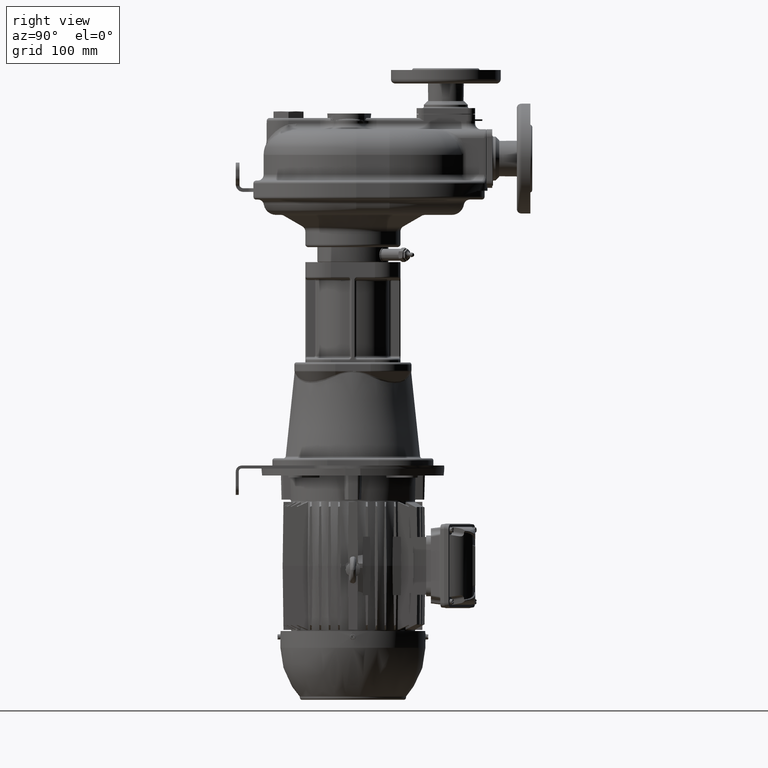
[diagram: clean part render]
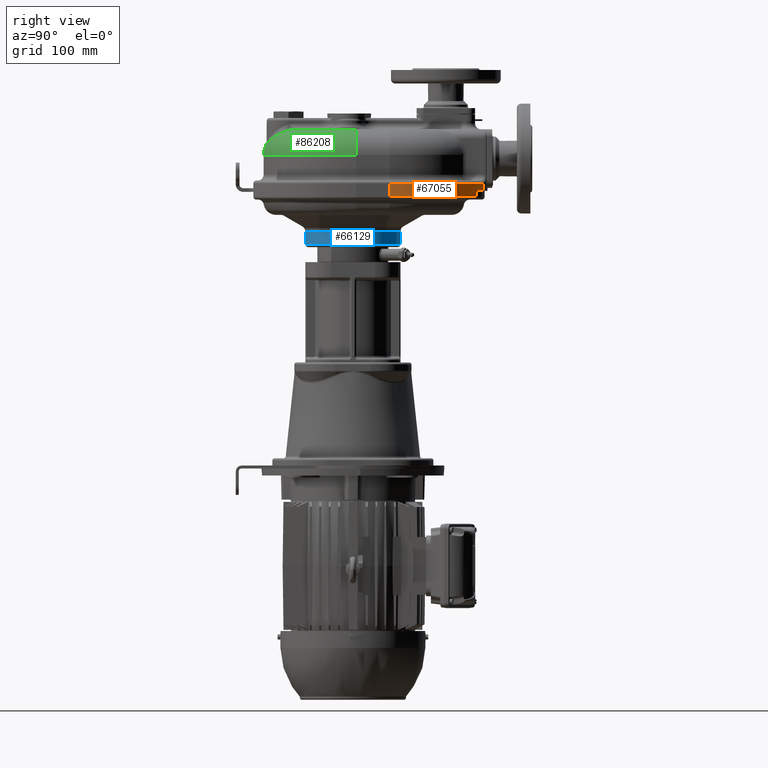
[diagram: same view with three faces highlighted in distinct colors, each labeled with its STEP entity id]
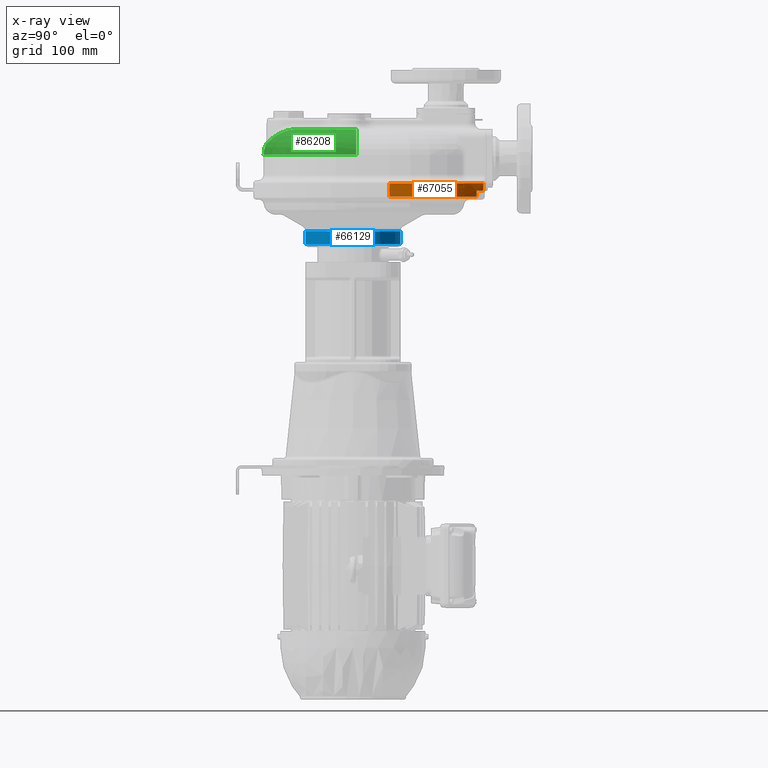
[diagram: x-ray of the same camera — body ghosted, the three highlighted faces saturated]
A machine part, right view with three faces highlighted in distinct colors.
The next image is the same camera in x-ray (body ghosted, the three faces saturated) — at least one of them is partly hidden behind the body in this view.
Their STEP definitions:

[orange] entity #67055 — the highlighted cylindrical surface (partial cylindrical patch) has radius 150 mm, axis along (0, 0, -1).
#10025=DIRECTION('',(0.E0,0.E0,-1.E0));
#10026=VECTOR('',#10025,1.8E1);
#10027=CARTESIAN_POINT('',(1.59E2,5.E1,5.E0));
#10028=LINE('',#10027,#10026);
#10037=DIRECTION('',(0.E0,0.E0,-1.E0));
#10038=VECTOR('',#10037,6.E0);
#10039=CARTESIAN_POINT('',(1.002240074459E2,1.690721649485E2,-7.E0));
#10040=LINE('',#10039,#10038);
#10041=CARTESIAN_POINT('',(9.E0,5.E1,-1.3E1));
#10042=DIRECTION('',(0.E0,0.E0,-1.E0));
#10043=DIRECTION('',(6.081600496393E-1,7.938144329897E-1,0.E0));
#10044=AXIS2_PLACEMENT_3D('',#10041,#10042,#10043);
#10046=CARTESIAN_POINT('',(9.E0,5.E1,5.E0));
#10047=DIRECTION('',(0.E0,0.E0,-1.E0));
#10048=DIRECTION('',(5.273972602740E-1,8.496188144430E-1,0.E0));
#10049=AXIS2_PLACEMENT_3D('',#10046,#10047,#10048);
#10051=CARTESIAN_POINT('',(8.690649194774E1,1.781818181818E2,5.057273132531E0));
#10052=CARTESIAN_POINT('',(8.703916836119E1,1.781011799598E2,5.044610795514E0));
#10053=CARTESIAN_POINT('',(8.730519693295E1,1.779389290195E2,5.023447268813E0));
#10054=CARTESIAN_POINT('',(8.770658737873E1,1.776923940260E2,5.004281846902E0));
#10055=CARTESIAN_POINT('',(8.797507183824E1,1.775263231474E2,5.000000005404E0));
#10056=CARTESIAN_POINT('',(8.810958904110E1,1.774428221664E2,5.E0));
#10058=DIRECTION('',(0.E0,0.E0,1.E0));
#10059=VECTOR('',#10058,1.005727313253E1);
#10060=CARTESIAN_POINT('',(8.690649194774E1,1.781818181818E2,-5.E0));
#10061=LINE('',#10060,#10059);
#10062=DIRECTION('',(0.E0,0.E0,-1.E0));
#10063=VECTOR('',#10062,5.E-1);
#10064=CARTESIAN_POINT('',(9.9E1,1.7E2,-6.5E0));
#10065=LINE('',#10064,#10063);
#10071=CARTESIAN_POINT('',(9.E0,5.E1,-7.E0));
#10072=DIRECTION('',(0.E0,0.E0,-1.E0));
#10073=DIRECTION('',(6.E-1,8.E-1,0.E0));
#10074=AXIS2_PLACEMENT_3D('',#10071,#10072,#10073);
#10396=CARTESIAN_POINT('',(9.E0,5.E1,-5.E0));
#10397=DIRECTION('',(0.E0,0.E0,-1.E0));
#10398=DIRECTION('',(5.193766129849E-1,8.545454545455E-1,0.E0));
#10399=AXIS2_PLACEMENT_3D('',#10396,#10397,#10398);
#10434=DIRECTION('',(0.E0,0.E0,1.E0));
#10435=VECTOR('',#10434,1.5E0);
#10436=CARTESIAN_POINT('',(1.002240074459E2,1.690721649485E2,-6.5E0));
#10437=LINE('',#10436,#10435);
#10447=CARTESIAN_POINT('',(9.E0,5.E1,-6.5E0));
#10448=DIRECTION('',(0.E0,0.E0,-1.E0));
#10449=DIRECTION('',(6.E-1,8.E-1,0.E0));
#10450=AXIS2_PLACEMENT_3D('',#10447,#10448,#10449);
#47488=CARTESIAN_POINT('',(8.690649194774E1,1.781818181818E2,-5.E0));
#47490=VERTEX_POINT('',#47488);
#47496=VERTEX_POINT('',#10051);
#47497=VERTEX_POINT('',#10056);
#47499=CARTESIAN_POINT('',(1.59E2,5.E1,5.E0));
#47500=VERTEX_POINT('',#47499);
#48072=CARTESIAN_POINT('',(1.002240074459E2,1.690721649485E2,-5.E0));
#48074=VERTEX_POINT('',#48072);
#48154=CARTESIAN_POINT('',(9.9E1,1.7E2,-6.5E0));
#48156=VERTEX_POINT('',#48154);
#48162=CARTESIAN_POINT('',(9.9E1,1.7E2,-7.E0));
#48164=VERTEX_POINT('',#48162);
#48230=CARTESIAN_POINT('',(1.002240074459E2,1.690721649485E2,-6.5E0));
#48232=VERTEX_POINT('',#48230);
#48347=CARTESIAN_POINT('',(1.59E2,5.E1,-1.3E1));
#48348=VERTEX_POINT('',#48347);
#48351=CARTESIAN_POINT('',(1.002240074459E2,1.690721649485E2,-1.3E1));
#48352=VERTEX_POINT('',#48351);
#48493=CARTESIAN_POINT('',(1.002240074459E2,1.690721649485E2,-7.E0));
#48495=VERTEX_POINT('',#48493);
#67027=CARTESIAN_POINT('',(9.E0,5.E1,-5.E0));
#67028=DIRECTION('',(0.E0,0.E0,-1.E0));
#67029=DIRECTION('',(-1.E0,0.E0,0.E0));
#67030=AXIS2_PLACEMENT_3D('',#67027,#67028,#67029);
#67031=CYLINDRICAL_SURFACE('',#67030,1.5E2);
#67033=ORIENTED_EDGE('',*,*,#67032,.T.);
#67035=ORIENTED_EDGE('',*,*,#67034,.T.);
#67037=ORIENTED_EDGE('',*,*,#67036,.T.);
#67038=ORIENTED_EDGE('',*,*,#67017,.F.);
#67040=ORIENTED_EDGE('',*,*,#67039,.F.);
#67042=ORIENTED_EDGE('',*,*,#67041,.F.);
#67044=ORIENTED_EDGE('',*,*,#67043,.F.);
#67046=ORIENTED_EDGE('',*,*,#67045,.T.);
#67048=ORIENTED_EDGE('',*,*,#67047,.F.);
#67050=ORIENTED_EDGE('',*,*,#67049,.F.);
#67052=ORIENTED_EDGE('',*,*,#67051,.T.);
#67053=EDGE_LOOP('',(#67033,#67035,#67037,#67038,#67040,#67042,#67044,#67046,
#67048,#67050,#67052));
#67054=FACE_OUTER_BOUND('',#67053,.F.);
#67055=ADVANCED_FACE('',(#67054),#67031,.T.);
#10045=CIRCLE('',#10044,1.5E2);
#10050=CIRCLE('',#10049,1.5E2);
#10057=B_SPLINE_CURVE_WITH_KNOTS('',3,(#10051,#10052,#10053,#10054,#10055,
#10056),.UNSPECIFIED.,.F.,.F.,(4,1,1,4),(0.E0,3.333333333333E-1,
6.666666666667E-1,1.E0),.UNSPECIFIED.);
#10075=CIRCLE('',#10074,1.5E2);
#10400=CIRCLE('',#10399,1.5E2);
#10451=CIRCLE('',#10450,1.5E2);
#67017=EDGE_CURVE('',#47500,#48348,#10028,.T.);
#67032=EDGE_CURVE('',#48164,#48495,#10075,.T.);
#67034=EDGE_CURVE('',#48495,#48352,#10040,.T.);
#67036=EDGE_CURVE('',#48352,#48348,#10045,.T.);
#67039=EDGE_CURVE('',#47497,#47500,#10050,.T.);
#67041=EDGE_CURVE('',#47496,#47497,#10057,.T.);
#67043=EDGE_CURVE('',#47490,#47496,#10061,.T.);
#67045=EDGE_CURVE('',#47490,#48074,#10400,.T.);
#67047=EDGE_CURVE('',#48232,#48074,#10437,.T.);
#67049=EDGE_CURVE('',#48156,#48232,#10451,.T.);
#67051=EDGE_CURVE('',#48156,#48164,#10065,.T.);

[blue] entity #66129 — the highlighted cylindrical surface (partial cylindrical patch) has radius 65 mm, axis along (0, 0, 1).
#9447=CARTESIAN_POINT('',(0.E0,0.E0,-7.8E1));
#9448=DIRECTION('',(0.E0,0.E0,1.E0));
#9449=DIRECTION('',(0.E0,-1.E0,0.E0));
#9450=AXIS2_PLACEMENT_3D('',#9447,#9448,#9449);
#9457=DIRECTION('',(0.E0,0.E0,1.E0));
#9458=VECTOR('',#9457,1.738119784648E1);
#9459=CARTESIAN_POINT('',(1.768811179956E-14,6.5E1,-7.8E1));
#9460=LINE('',#9459,#9458);
#9461=DIRECTION('',(0.E0,0.E0,1.E0));
#9462=VECTOR('',#9461,1.738119784648E1);
#9463=CARTESIAN_POINT('',(0.E0,-6.5E1,-7.8E1));
#9464=LINE('',#9463,#9462);
#9485=CARTESIAN_POINT('',(0.E0,0.E0,-6.061880215352E1));
#9486=DIRECTION('',(0.E0,0.E0,1.E0));
#9487=DIRECTION('',(0.E0,-1.E0,0.E0));
#9488=AXIS2_PLACEMENT_3D('',#9485,#9486,#9487);
#48241=CARTESIAN_POINT('',(0.E0,-6.5E1,-6.061880215352E1));
#48243=VERTEX_POINT('',#48241);
#48245=CARTESIAN_POINT('',(2.090559832256E-14,6.5E1,-6.061880215352E1));
#48247=VERTEX_POINT('',#48245);
#48261=CARTESIAN_POINT('',(0.E0,-6.5E1,-7.8E1));
#48262=CARTESIAN_POINT('',(0.E0,6.5E1,-7.8E1));
#48263=VERTEX_POINT('',#48261);
#48264=VERTEX_POINT('',#48262);
#66115=CARTESIAN_POINT('',(0.E0,0.E0,-8.42E1));
#66116=DIRECTION('',(0.E0,0.E0,1.E0));
#66117=DIRECTION('',(0.E0,-1.E0,0.E0));
#66118=AXIS2_PLACEMENT_3D('',#66115,#66116,#66117);
#66119=CYLINDRICAL_SURFACE('',#66118,6.5E1);
#66120=ORIENTED_EDGE('',*,*,#66105,.F.);
#66122=ORIENTED_EDGE('',*,*,#66121,.T.);
#66124=ORIENTED_EDGE('',*,*,#66123,.T.);
#66126=ORIENTED_EDGE('',*,*,#66125,.F.);
#66127=EDGE_LOOP('',(#66120,#66122,#66124,#66126));
#66128=FACE_OUTER_BOUND('',#66127,.F.);
#66129=ADVANCED_FACE('',(#66128),#66119,.T.);
#9451=CIRCLE('',#9450,6.5E1);
#9489=CIRCLE('',#9488,6.5E1);
#66105=EDGE_CURVE('',#48263,#48264,#9451,.T.);
#66121=EDGE_CURVE('',#48263,#48243,#9464,.T.);
#66123=EDGE_CURVE('',#48243,#48247,#9489,.T.);
#66125=EDGE_CURVE('',#48264,#48247,#9460,.T.);

[green] entity #86208 — the highlighted toroidal blend (fillet) surface has major radius 91.5 mm and minor (blend) radius 35 mm.
#19998=CARTESIAN_POINT('',(4.5E0,4.5E0,7.9E1));
#19999=DIRECTION('',(0.E0,0.E0,1.E0));
#20000=DIRECTION('',(4.644808743149E-1,-8.855831510342E-1,0.E0));
#20001=AXIS2_PLACEMENT_3D('',#19998,#19999,#20000);
#21016=CARTESIAN_POINT('',(4.5E0,-8.7E1,4.4E1));
#21017=DIRECTION('',(1.E0,0.E0,0.E0));
#21018=DIRECTION('',(0.E0,-9.007584160338E-1,4.343204760822E-1));
#21019=AXIS2_PLACEMENT_3D('',#21016,#21017,#21018);
#21021=CARTESIAN_POINT('',(4.620023547849E1,-8.625933604142E1,
7.798180130472E1));
#21022=CARTESIAN_POINT('',(4.617928423324E1,-8.653776484014E1,
7.792156197644E1));
#21023=CARTESIAN_POINT('',(4.612927418949E1,-8.709811102056E1,
7.779541235835E1));
#21024=CARTESIAN_POINT('',(4.602922051985E1,-8.794843420816E1,
7.758900466919E1));
#21025=CARTESIAN_POINT('',(4.590328986622E1,-8.880864348120E1,
7.736505306068E1));
#21026=CARTESIAN_POINT('',(4.575073276721E1,-8.967791185695E1,
7.712341690497E1));
#21027=CARTESIAN_POINT('',(4.557074757975E1,-9.055575559138E1,
7.686387739588E1));
#21028=CARTESIAN_POINT('',(4.536256172341E1,-9.144144270958E1,
7.658628830675E1));
#21029=CARTESIAN_POINT('',(4.512540482856E1,-9.233422668940E1,
7.629052067302E1));
#21030=CARTESIAN_POINT('',(4.485852890768E1,-9.323325926520E1,
7.597649070797E1));
#21031=CARTESIAN_POINT('',(4.456121028216E1,-9.413761929663E1,
7.564415696204E1));
#21032=CARTESIAN_POINT('',(4.423275861969E1,-9.504630300315E1,
7.529352847199E1));
#21033=CARTESIAN_POINT('',(4.387252391009E1,-9.595822713133E1,
7.492466958585E1));
#21034=CARTESIAN_POINT('',(4.347990445091E1,-9.687222888657E1,
7.453770610623E1));
#21035=CARTESIAN_POINT('',(4.305435482311E1,-9.778706755075E1,7.413283133E1));
#21036=CARTESIAN_POINT('',(4.259539472468E1,-9.870142529490E1,
7.371031295822E1));
#21037=CARTESIAN_POINT('',(4.210261782775E1,-9.961390944273E1,
7.327050002844E1));
#21038=CARTESIAN_POINT('',(4.157570152121E1,-1.005230543581E2,
7.281383071599E1));
#21039=CARTESIAN_POINT('',(4.101441755743E1,-1.014273234746E2,
7.234084094242E1));
#21040=CARTESIAN_POINT('',(4.041864362167E1,-1.023251117400E2,
7.185217376250E1));
#21041=CARTESIAN_POINT('',(3.978837673975E1,-1.032147475136E2,
7.134859019566E1));
#21042=CARTESIAN_POINT('',(3.912374842699E1,-1.040944947898E2,
7.083098124106E1));
#21043=CARTESIAN_POINT('',(3.842504264161E1,-1.049625549746E2,
7.030038169353E1));
#21044=CARTESIAN_POINT('',(3.769271681244E1,-1.058170688452E2,
6.975798561173E1));
#21045=CARTESIAN_POINT('',(3.692742732190E1,-1.066561181205E2,
6.920516398051E1));
#21046=CARTESIAN_POINT('',(3.613005899611E1,-1.074777283586E2,
6.864348357615E1));
#21047=CARTESIAN_POINT('',(3.530176098391E1,-1.082798718366E2,
6.807472786893E1));
#21048=CARTESIAN_POINT('',(3.444398696579E1,-1.090604738861E2,
6.750091732786E1));
#21049=CARTESIAN_POINT('',(3.355854085844E1,-1.098174222566E2,
6.692432859352E1));
#21050=CARTESIAN_POINT('',(3.264762446598E1,-1.105485831817E2,
6.634750849065E1));
#21051=CARTESIAN_POINT('',(3.171388290918E1,-1.112518266828E2,
6.577327854990E1));
#21052=CARTESIAN_POINT('',(3.076043918452E1,-1.119250651774E2,
6.520472327609E1));
#21053=CARTESIAN_POINT('',(2.979090881341E1,-1.125663069528E2,
6.464515613304E1));
#21054=CARTESIAN_POINT('',(2.880937663846E1,-1.131737289667E2,
6.409805367762E1));
#21055=CARTESIAN_POINT('',(2.782032377195E1,-1.137457651667E2,
6.356695487499E1));
#21056=CARTESIAN_POINT('',(2.682849760814E1,-1.142812022391E2,
6.305532835478E1));
#21057=CARTESIAN_POINT('',(2.583871419047E1,-1.147792764958E2,
6.256641164853E1));
#21058=CARTESIAN_POINT('',(2.485562087443E1,-1.152397469333E2,
6.210304927699E1));
#21059=CARTESIAN_POINT('',(2.388346950778E1,-1.156629213397E2,
6.166756284267E1));
#21060=CARTESIAN_POINT('',(2.292588884467E1,-1.160496489013E2,
6.126165293136E1));
#21061=CARTESIAN_POINT('',(2.198572971491E1,-1.164012583812E2,
6.088636769513E1));
#21062=CARTESIAN_POINT('',(2.106498572315E1,-1.167194607164E2,
6.054213102712E1));
#21063=CARTESIAN_POINT('',(2.016480150579E1,-1.170062286761E2,
6.022882314081E1));
#21064=CARTESIAN_POINT('',(1.928554087706E1,-1.172636758758E2,
5.994589063811E1));
#21065=CARTESIAN_POINT('',(1.842689740768E1,-1.174939486498E2,
5.969246587245E1));
#21066=CARTESIAN_POINT('',(1.758800011679E1,-1.176991429902E2,
5.946747645045E1));
#21067=CARTESIAN_POINT('',(1.676758557717E1,-1.178812272906E2,
5.926975917172E1));
#21068=CARTESIAN_POINT('',(1.596410102465E1,-1.180420049800E2,
5.909813396007E1));
#21069=CARTESIAN_POINT('',(1.517569162599E1,-1.181831081439E2,
5.895144531515E1));
#21070=CARTESIAN_POINT('',(1.440033917567E1,-1.183059664090E2,
5.882862832798E1));
#21071=CARTESIAN_POINT('',(1.363592688908E1,-1.184118015819E2,
5.872874216606E1));
#21072=CARTESIAN_POINT('',(1.288027446078E1,-1.185016296212E2,
5.865099150373E1));
#21073=CARTESIAN_POINT('',(1.213116396730E1,-1.185762651461E2,
5.859474023248E1));
#21074=CARTESIAN_POINT('',(1.138635539913E1,-1.186363267792E2,
5.855951998356E1));
#21075=CARTESIAN_POINT('',(1.064359532169E1,-1.186822428706E2,
5.854503311395E1));
#21076=CARTESIAN_POINT('',(9.900620274434E0,-1.187142544997E2,
5.855115628849E1));
#21077=CARTESIAN_POINT('',(9.155157810541E0,-1.187324169710E2,
5.857794150846E1));
#21078=CARTESIAN_POINT('',(8.404924293103E0,-1.187365990400E2,
5.862561603134E1));
#21079=CARTESIAN_POINT('',(7.647646319137E0,-1.187264801599E2,
5.869457885543E1));
#21080=CARTESIAN_POINT('',(6.881027104668E0,-1.187015467578E2,
5.878539770954E1));
#21081=CARTESIAN_POINT('',(6.102789676314E0,-1.186610812470E2,
5.889880677412E1));
#21082=CARTESIAN_POINT('',(5.310775968011E0,-1.186041730273E2,
5.903566500933E1));
#21083=CARTESIAN_POINT('',(4.771903583504E0,-1.185544848021E2,
5.914327003672E1));
#21084=CARTESIAN_POINT('',(4.5E0,-1.185265445612E2,5.920121666288E1));
#21086=CARTESIAN_POINT('',(4.7E1,-7.653085831964E1,7.9E1));
#21087=CARTESIAN_POINT('',(4.696156459939E1,-7.695982414820E1,
7.899999998210E1));
#21088=CARTESIAN_POINT('',(4.688606853637E1,-7.781230571232E1,
7.898876018256E1));
#21089=CARTESIAN_POINT('',(4.677693883095E1,-7.907303419820E1,
7.893893536700E1));
#21090=CARTESIAN_POINT('',(4.667172841271E1,-8.031614512452E1,
7.885686931795E1));
#21091=CARTESIAN_POINT('',(4.657030200291E1,-8.154143950984E1,
7.874325901770E1));
#21092=CARTESIAN_POINT('',(4.647251632043E1,-8.274885361577E1,
7.859877716852E1));
#21093=CARTESIAN_POINT('',(4.637823719677E1,-8.393827636027E1,
7.842407031964E1));
#21094=CARTESIAN_POINT('',(4.628734619725E1,-8.510947320601E1,
7.821979091632E1));
#21095=CARTESIAN_POINT('',(4.622891524642E1,-8.587819411860E1,
7.806426307818E1));
#21096=CARTESIAN_POINT('',(4.620023547849E1,-8.625933604142E1,
7.798180130472E1));
#21098=CARTESIAN_POINT('',(9.6E1,4.5E0,4.4E1));
#21099=DIRECTION('',(0.E0,1.E0,0.E0));
#21100=DIRECTION('',(0.E0,0.E0,1.E0));
#21101=AXIS2_PLACEMENT_3D('',#21098,#21099,#21100);
#21591=CARTESIAN_POINT('',(4.5E0,4.5E0,4.4E1));
#21592=DIRECTION('',(0.E0,0.E0,1.E0));
#21593=DIRECTION('',(0.E0,-1.E0,0.E0));
#21594=AXIS2_PLACEMENT_3D('',#21591,#21592,#21593);
#47294=CARTESIAN_POINT('',(9.6E1,4.5E0,7.9E1));
#47296=VERTEX_POINT('',#47294);
#47298=CARTESIAN_POINT('',(1.31E2,4.5E0,4.4E1));
#47300=VERTEX_POINT('',#47298);
#47302=CARTESIAN_POINT('',(4.5E0,-1.22E2,4.4E1));
#47303=VERTEX_POINT('',#47302);
#47314=CARTESIAN_POINT('',(4.699999999981E1,-7.653085831963E1,7.9E1));
#47315=VERTEX_POINT('',#47314);
#47411=VERTEX_POINT('',#21096);
#47413=VERTEX_POINT('',#21084);
#86193=CARTESIAN_POINT('',(4.5E0,4.5E0,4.4E1));
#86194=DIRECTION('',(0.E0,0.E0,-1.E0));
#86195=DIRECTION('',(-1.726766789819E-4,-9.999999850914E-1,0.E0));
#86196=AXIS2_PLACEMENT_3D('',#86193,#86194,#86195);
#86197=TOROIDAL_SURFACE('',#86196,9.15E1,3.5E1);
#86198=ORIENTED_EDGE('',*,*,#84982,.T.);
#86200=ORIENTED_EDGE('',*,*,#86199,.T.);
#86202=ORIENTED_EDGE('',*,*,#86201,.F.);
#86203=ORIENTED_EDGE('',*,*,#85511,.F.);
#86204=ORIENTED_EDGE('',*,*,#86109,.F.);
#86205=ORIENTED_EDGE('',*,*,#86175,.F.);
#86206=EDGE_LOOP('',(#86198,#86200,#86202,#86203,#86204,#86205));
#86207=FACE_OUTER_BOUND('',#86206,.F.);
#86208=ADVANCED_FACE('',(#86207),#86197,.T.);
#20002=CIRCLE('',#20001,9.15E1);
#21020=CIRCLE('',#21019,3.5E1);
#21085=B_SPLINE_CURVE_WITH_KNOTS('',3,(#21021,#21022,#21023,#21024,#21025,
#21026,#21027,#21028,#21029,#21030,#21031,#21032,#21033,#21034,#21035,#21036,
#21037,#21038,#21039,#21040,#21041,#21042,#21043,#21044,#21045,#21046,#21047,
#21048,#21049,#21050,#21051,#21052,#21053,#21054,#21055,#21056,#21057,#21058,
#21059,#21060,#21061,#21062,#21063,#21064,#21065,#21066,#21067,#21068,#21069,
#21070,#21071,#21072,#21073,#21074,#21075,#21076,#21077,#21078,#21079,#21080,
#21081,#21082,#21083,#21084),.UNSPECIFIED.,.F.,.F.,(4,1,1,1,1,1,1,1,1,1,1,1,1,1,
1,1,1,1,1,1,1,1,1,1,1,1,1,1,1,1,1,1,1,1,1,1,1,1,1,1,1,1,1,1,1,1,1,1,1,1,1,1,1,1,
1,1,1,1,1,1,1,4),(0.E0,1.639344262295E-2,3.278688524590E-2,4.918032786885E-2,
6.557377049180E-2,8.196721311475E-2,9.836065573770E-2,1.147540983607E-1,
1.311475409836E-1,1.475409836066E-1,1.639344262295E-1,1.803278688525E-1,
1.967213114754E-1,2.131147540984E-1,2.295081967213E-1,2.459016393443E-1,
2.622950819672E-1,2.786885245902E-1,2.950819672131E-1,3.114754098361E-1,
3.278688524590E-1,3.442622950820E-1,3.606557377049E-1,3.770491803279E-1,
3.934426229508E-1,4.098360655738E-1,4.262295081967E-1,4.426229508197E-1,
4.590163934426E-1,4.754098360656E-1,4.918032786885E-1,5.081967213115E-1,
5.245901639344E-1,5.409836065574E-1,5.573770491803E-1,5.737704918033E-1,
5.901639344262E-1,6.065573770492E-1,6.229508196721E-1,6.393442622951E-1,
6.557377049180E-1,6.721311475410E-1,6.885245901639E-1,7.049180327869E-1,
7.213114754098E-1,7.377049180328E-1,7.540983606557E-1,7.704918032787E-1,
7.868852459016E-1,8.032786885246E-1,8.196721311475E-1,8.360655737705E-1,
8.524590163934E-1,8.688524590164E-1,8.852459016393E-1,9.016393442623E-1,
9.180327868852E-1,9.344262295082E-1,9.508196721311E-1,9.672131147541E-1,
9.836065573770E-1,1.E0),.UNSPECIFIED.);
#21097=B_SPLINE_CURVE_WITH_KNOTS('',3,(#21086,#21087,#21088,#21089,#21090,
#21091,#21092,#21093,#21094,#21095,#21096),.UNSPECIFIED.,.F.,.F.,(4,1,1,1,1,1,1,
1,4),(0.E0,1.25E-1,2.5E-1,3.75E-1,5.E-1,6.25E-1,7.5E-1,8.75E-1,1.E0),
.UNSPECIFIED.);
#21102=CIRCLE('',#21101,3.5E1);
#21595=CIRCLE('',#21594,1.265E2);
#84982=EDGE_CURVE('',#47315,#47296,#20002,.T.);
#85511=EDGE_CURVE('',#47413,#47303,#21020,.T.);
#86109=EDGE_CURVE('',#47411,#47413,#21085,.T.);
#86175=EDGE_CURVE('',#47315,#47411,#21097,.T.);
#86199=EDGE_CURVE('',#47296,#47300,#21102,.T.);
#86201=EDGE_CURVE('',#47303,#47300,#21595,.T.);